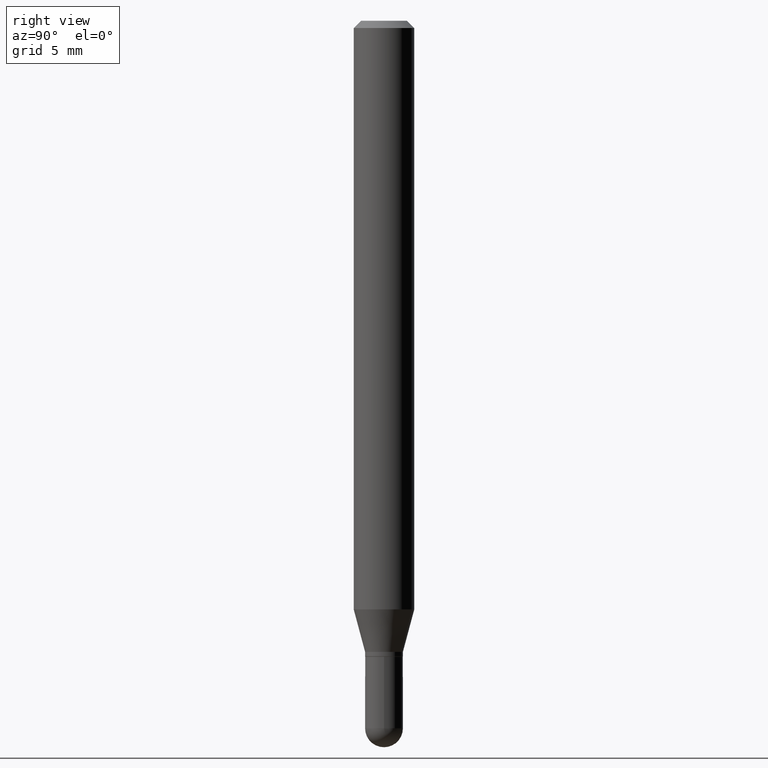
[diagram: clean part render]
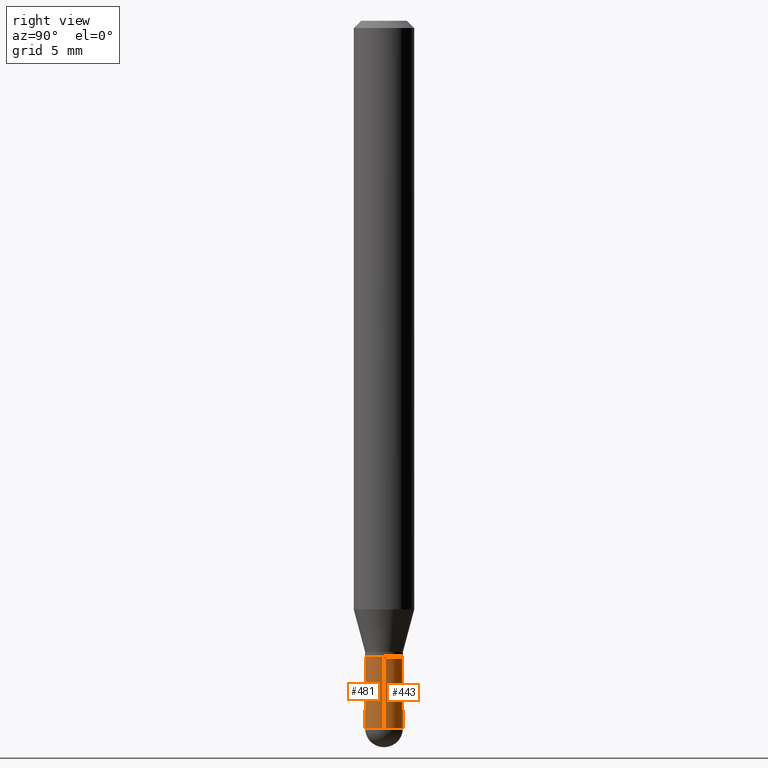
[diagram: same view with one multi-face feature highlighted, each face labeled with its STEP entity id]
A machine part, right view. The highlighted faces form ONE feature: a constant-radius fillet chain: 2 tangent blend faces with common blend radius 0.9919 mm. The faces share edges in the B-rep.
Their STEP definitions:
[1] entity #443 (Cylinder):
#2 = CIRCLE ( 'NONE', #132, 0.03905000000000000832 ) ;
#3 = VECTOR ( 'NONE', #270, 39.37007874015748143 ) ;
#37 = AXIS2_PLACEMENT_3D ( 'NONE', #160, #249, #48 ) ;
#41 = EDGE_CURVE ( 'NONE', #237, #91, #473, .T. ) ;
#48 = DIRECTION ( 'NONE',  ( 1.000000000000000000, -6.982962677686265133E-15, 0.000000000000000000 ) ) ;
#64 = EDGE_CURVE ( 'NONE', #141, #353, #185, .T. ) ;
#81 = VERTEX_POINT ( 'NONE', #204 ) ;
#83 = ORIENTED_EDGE ( 'NONE', *, *, #262, .T. ) ;
#86 = DIRECTION ( 'NONE',  ( 1.000000000000000000, -6.982962677686266711E-15, 4.876176775795935232E-29 ) ) ;
#87 = DIRECTION ( 'NONE',  ( 1.000000000000000000, -6.982962677686266711E-15, 0.000000000000000000 ) ) ;
#88 = DIRECTION ( 'NONE',  ( -2.445468806185136597E-29, 3.491481338843145583E-15, 1.000000000000000000 ) ) ;
#91 = VERTEX_POINT ( 'NONE', #247 ) ;
#100 = CARTESIAN_POINT ( 'NONE',  ( 0.03905000000000000832, -2.726846925636487675E-16, 1.904147030948313202E-30 ) ) ;
#102 = CARTESIAN_POINT ( 'NONE',  ( 3.572707652396175485E-29, -5.100879661982893620E-15, -1.460950000000000193 ) ) ;
#105 = AXIS2_PLACEMENT_3D ( 'NONE', #370, #442, #87 ) ;
#109 = CARTESIAN_POINT ( 'NONE',  ( -0.03905000000000000832, 2.774669383143191817E-16, -1.920844152744540988E-30 ) ) ;
#121 = CARTESIAN_POINT ( 'NONE',  ( 0.000000000000000000, 0.000000000000000000, 0.000000000000000000 ) ) ;
#132 = AXIS2_PLACEMENT_3D ( 'NONE', #102, #148, #272 ) ;
#141 = VERTEX_POINT ( 'NONE', #299 ) ;
#148 = DIRECTION ( 'NONE',  ( -2.445468806185136597E-29, 3.491481338843145583E-15, 1.000000000000000000 ) ) ;
#160 = CARTESIAN_POINT ( 'NONE',  ( 3.572707652396175485E-29, -5.100879661982893620E-15, -1.460950000000000193 ) ) ;
#182 = ORIENTED_EDGE ( 'NONE', *, *, #41, .T. ) ;
#185 = CIRCLE ( 'NONE', #105, 0.03905000000000000138 ) ;
#187 = AXIS2_PLACEMENT_3D ( 'NONE', #121, #88, #86 ) ;
#204 = CARTESIAN_POINT ( 'NONE',  ( -0.03905000000000000832, -4.565130391627653569E-15, -1.460950000000000193 ) ) ;
#229 = EDGE_CURVE ( 'NONE', #81, #353, #398, .T. ) ;
#237 = VERTEX_POINT ( 'NONE', #429 ) ;
#247 = CARTESIAN_POINT ( 'NONE',  ( 2.774669383143552228E-16, 0.03904999999999496374, -1.460950000000000193 ) ) ;
#249 = DIRECTION ( 'NONE',  ( -2.445468806185136597E-29, 3.491481338843145583E-15, 1.000000000000000000 ) ) ;
#262 = EDGE_CURVE ( 'NONE', #91, #81, #2, .T. ) ;
#265 = DIRECTION ( 'NONE',  ( -2.445468806185136877E-29, 3.491481338843145188E-15, 1.000000000000000000 ) ) ;
#270 = DIRECTION ( 'NONE',  ( -2.445468806185136877E-29, 3.491481338843145188E-15, 1.000000000000000000 ) ) ;
#272 = DIRECTION ( 'NONE',  ( 1.000000000000000000, -6.982962677686265133E-15, 0.000000000000000000 ) ) ;
#286 = FACE_OUTER_BOUND ( 'NONE', #440, .T. ) ;
#299 = CARTESIAN_POINT ( 'NONE',  ( 0.03905000000000000138, -4.856999690464699711E-15, -1.313000000000000167 ) ) ;
#301 = ORIENTED_EDGE ( 'NONE', *, *, #64, .F. ) ;
#324 = CYLINDRICAL_SURFACE ( 'NONE', #187, 0.03905000000000000832 ) ;
#336 = VECTOR ( 'NONE', #265, 39.37007874015748143 ) ;
#343 = LINE ( 'NONE', #100, #3 ) ;
#353 = VERTEX_POINT ( 'NONE', #482 ) ;
#367 = ORIENTED_EDGE ( 'NONE', *, *, #458, .F. ) ;
#370 = CARTESIAN_POINT ( 'NONE',  ( 3.210900542521084585E-29, -4.584314997901050598E-15, -1.313000000000000167 ) ) ;
#375 = ORIENTED_EDGE ( 'NONE', *, *, #229, .T. ) ;
#398 = LINE ( 'NONE', #109, #336 ) ;
#429 = CARTESIAN_POINT ( 'NONE',  ( 0.03905000000000000832, -5.115282022505621222E-15, -1.460950000000000193 ) ) ;
#440 = EDGE_LOOP ( 'NONE', ( #83, #375, #301, #367, #182 ) ) ;
#442 = DIRECTION ( 'NONE',  ( -2.445468806185136597E-29, 3.491481338843145583E-15, 1.000000000000000000 ) ) ;
#443 = ADVANCED_FACE ( 'NONE', ( #286 ), #324, .T. ) ;
#458 = EDGE_CURVE ( 'NONE', #237, #141, #343, .T. ) ;
#473 = CIRCLE ( 'NONE', #37, 0.03905000000000000832 ) ;
#482 = CARTESIAN_POINT ( 'NONE',  ( -0.03905000000000000138, -4.565130391627653569E-15, -1.313000000000000167 ) ) ;
[2] entity #481 (Cylinder):
#3 = VECTOR ( 'NONE', #270, 39.37007874015748143 ) ;
#4 = EDGE_LOOP ( 'NONE', ( #389, #180, #359, #393, #220 ) ) ;
#9 = CARTESIAN_POINT ( 'NONE',  ( 3.572707652396175485E-29, -5.100879661982893620E-15, -1.460950000000000193 ) ) ;
#25 = EDGE_CURVE ( 'NONE', #353, #141, #354, .T. ) ;
#49 = CARTESIAN_POINT ( 'NONE',  ( 3.572707652396175485E-29, -5.100879661982893620E-15, -1.460950000000000193 ) ) ;
#81 = VERTEX_POINT ( 'NONE', #204 ) ;
#95 = CARTESIAN_POINT ( 'NONE',  ( 0.000000000000000000, 0.000000000000000000, 0.000000000000000000 ) ) ;
#100 = CARTESIAN_POINT ( 'NONE',  ( 0.03905000000000000832, -2.726846925636487675E-16, 1.904147030948313202E-30 ) ) ;
#109 = CARTESIAN_POINT ( 'NONE',  ( -0.03905000000000000832, 2.774669383143191817E-16, -1.920844152744540988E-30 ) ) ;
#118 = CARTESIAN_POINT ( 'NONE',  ( 3.210900542521084585E-29, -4.584314997901050598E-15, -1.313000000000000167 ) ) ;
#122 = AXIS2_PLACEMENT_3D ( 'NONE', #118, #155, #167 ) ;
#141 = VERTEX_POINT ( 'NONE', #299 ) ;
#155 = DIRECTION ( 'NONE',  ( -2.445468806185136597E-29, 3.491481338843145583E-15, 1.000000000000000000 ) ) ;
#161 = DIRECTION ( 'NONE',  ( -2.445468806185136597E-29, 3.491481338843145583E-15, 1.000000000000000000 ) ) ;
#167 = DIRECTION ( 'NONE',  ( 1.000000000000000000, -6.982962677686266711E-15, 0.000000000000000000 ) ) ;
#172 = CIRCLE ( 'NONE', #404, 0.03905000000000000832 ) ;
#180 = ORIENTED_EDGE ( 'NONE', *, *, #307, .T. ) ;
#198 = DIRECTION ( 'NONE',  ( 1.000000000000000000, -6.982962677686265133E-15, 0.000000000000000000 ) ) ;
#204 = CARTESIAN_POINT ( 'NONE',  ( -0.03905000000000000832, -4.565130391627653569E-15, -1.460950000000000193 ) ) ;
#220 = ORIENTED_EDGE ( 'NONE', *, *, #25, .F. ) ;
#225 = AXIS2_PLACEMENT_3D ( 'NONE', #49, #161, #246 ) ;
#229 = EDGE_CURVE ( 'NONE', #81, #353, #398, .T. ) ;
#236 = CIRCLE ( 'NONE', #225, 0.03905000000000000832 ) ;
#237 = VERTEX_POINT ( 'NONE', #429 ) ;
#246 = DIRECTION ( 'NONE',  ( 1.000000000000000000, -6.982962677686265133E-15, 0.000000000000000000 ) ) ;
#256 = DIRECTION ( 'NONE',  ( -2.445468806185136597E-29, 3.491481338843145583E-15, 1.000000000000000000 ) ) ;
#260 = AXIS2_PLACEMENT_3D ( 'NONE', #95, #256, #466 ) ;
#265 = DIRECTION ( 'NONE',  ( -2.445468806185136877E-29, 3.491481338843145188E-15, 1.000000000000000000 ) ) ;
#270 = DIRECTION ( 'NONE',  ( -2.445468806185136877E-29, 3.491481338843145188E-15, 1.000000000000000000 ) ) ;
#278 = VERTEX_POINT ( 'NONE', #502 ) ;
#299 = CARTESIAN_POINT ( 'NONE',  ( 0.03905000000000000138, -4.856999690464699711E-15, -1.313000000000000167 ) ) ;
#307 = EDGE_CURVE ( 'NONE', #81, #278, #172, .T. ) ;
#336 = VECTOR ( 'NONE', #265, 39.37007874015748143 ) ;
#343 = LINE ( 'NONE', #100, #3 ) ;
#353 = VERTEX_POINT ( 'NONE', #482 ) ;
#354 = CIRCLE ( 'NONE', #122, 0.03905000000000000138 ) ;
#359 = ORIENTED_EDGE ( 'NONE', *, *, #380, .T. ) ;
#369 = DIRECTION ( 'NONE',  ( -2.445468806185136597E-29, 3.491481338843145583E-15, 1.000000000000000000 ) ) ;
#380 = EDGE_CURVE ( 'NONE', #278, #237, #236, .T. ) ;
#389 = ORIENTED_EDGE ( 'NONE', *, *, #229, .F. ) ;
#393 = ORIENTED_EDGE ( 'NONE', *, *, #458, .T. ) ;
#398 = LINE ( 'NONE', #109, #336 ) ;
#404 = AXIS2_PLACEMENT_3D ( 'NONE', #9, #369, #198 ) ;
#429 = CARTESIAN_POINT ( 'NONE',  ( 0.03905000000000000832, -5.115282022505621222E-15, -1.460950000000000193 ) ) ;
#458 = EDGE_CURVE ( 'NONE', #237, #141, #343, .T. ) ;
#466 = DIRECTION ( 'NONE',  ( 1.000000000000000000, -6.982962677686266711E-15, 4.876176775795935232E-29 ) ) ;
#481 = ADVANCED_FACE ( 'NONE', ( #489 ), #505, .T. ) ;
#482 = CARTESIAN_POINT ( 'NONE',  ( -0.03905000000000000138, -4.565130391627653569E-15, -1.313000000000000167 ) ) ;
#489 = FACE_OUTER_BOUND ( 'NONE', #4, .T. ) ;
#502 = CARTESIAN_POINT ( 'NONE',  ( -2.726846925636134167E-16, -0.03905000000000517085, -1.460950000000000193 ) ) ;
#505 = CYLINDRICAL_SURFACE ( 'NONE', #260, 0.03905000000000000832 ) ;